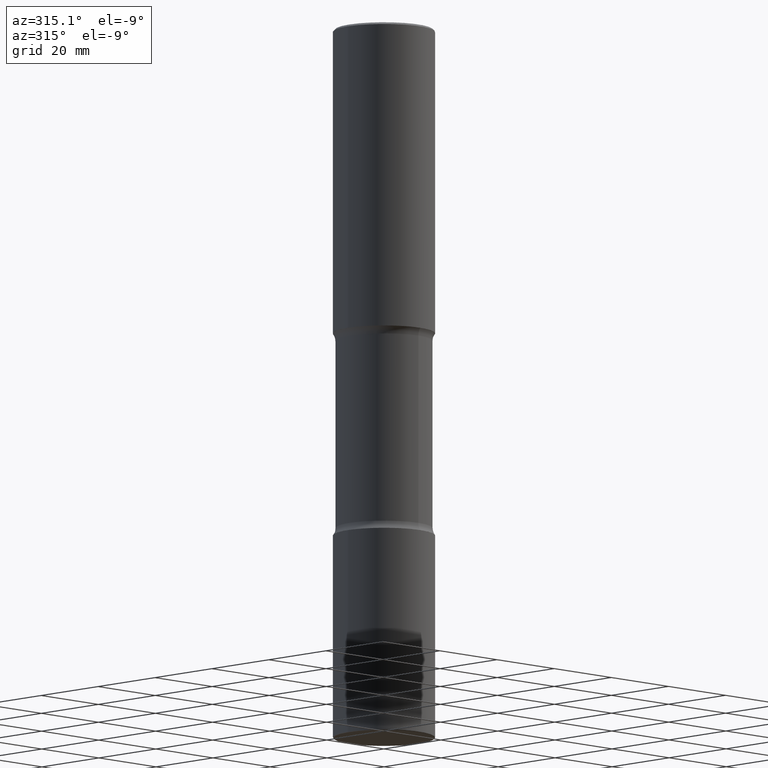
[diagram: clean part render]
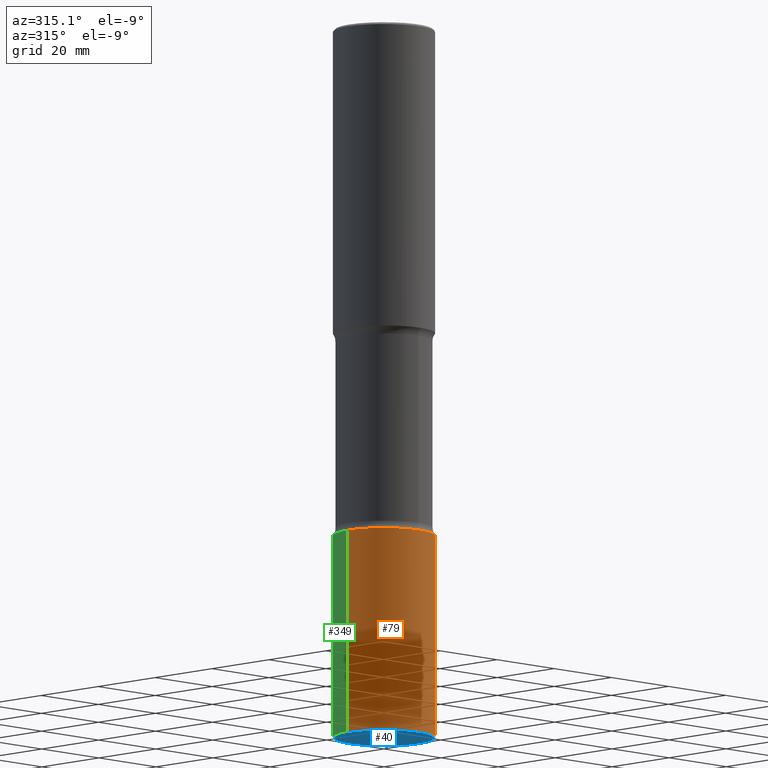
[diagram: same view with three faces highlighted in distinct colors, each labeled with its STEP entity id]
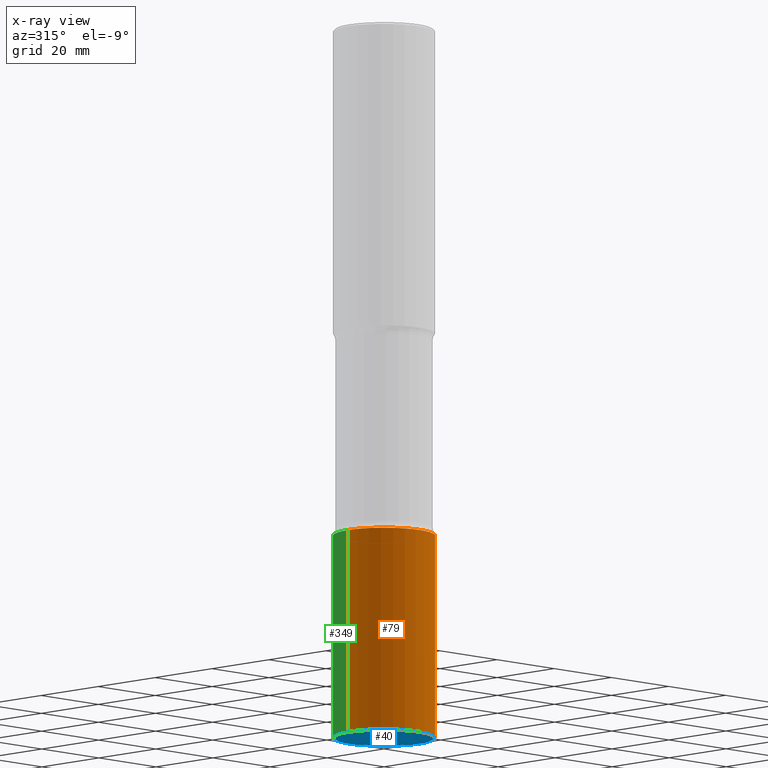
[diagram: x-ray of the same camera — body ghosted, the three highlighted faces saturated]
A machine part, auxiliary view with three faces highlighted in distinct colors.
The next image is the same camera in x-ray (body ghosted, the three faces saturated) — at least one of them is partly hidden behind the body in this view.
Their STEP definitions:

[orange] entity #79 — the highlighted cylindrical surface (partial cylindrical patch) has radius 12.7 mm, axis along (-0, 0, 1).
#10 = EDGE_CURVE ( 'NONE', #410, #215, #295, .T. ) ;
#24 = DIRECTION ( 'NONE',  ( -2.445468806185136597E-29, 3.491481338843145583E-15, 1.000000000000000000 ) ) ;
#26 = CARTESIAN_POINT ( 'NONE',  ( -0.5000000000000006661, -2.085274087971308453E-14, -6.989999999999999325 ) ) ;
#78 = ORIENTED_EDGE ( 'NONE', *, *, #237, .T. ) ;
#79 = ADVANCED_FACE ( 'NONE', ( #156 ), #203, .T. ) ;
#84 = AXIS2_PLACEMENT_3D ( 'NONE', #206, #559, #216 ) ;
#137 = VECTOR ( 'NONE', #344, 39.37007874015748143 ) ;
#151 = EDGE_CURVE ( 'NONE', #311, #215, #498, .T. ) ;
#156 = FACE_OUTER_BOUND ( 'NONE', #369, .T. ) ;
#179 = DIRECTION ( 'NONE',  ( 1.000000000000000000, -6.982962677686263555E-15, 0.000000000000000000 ) ) ;
#199 = AXIS2_PLACEMENT_3D ( 'NONE', #467, #24, #275 ) ;
#203 = CYLINDRICAL_SURFACE ( 'NONE', #199, 0.5000000000000002220 ) ;
#206 = CARTESIAN_POINT ( 'NONE',  ( 1.709382695523410463E-28, -2.440545455851358546E-14, -6.989999999999999325 ) ) ;
#215 = VERTEX_POINT ( 'NONE', #556 ) ;
#216 = DIRECTION ( 'NONE',  ( 1.000000000000000000, -6.982962677686265922E-15, 0.000000000000000000 ) ) ;
#224 = DIRECTION ( 'NONE',  ( -2.445468806185136597E-29, 3.491481338843145583E-15, 1.000000000000000000 ) ) ;
#235 = EDGE_CURVE ( 'NONE', #485, #410, #304, .T. ) ;
#237 = EDGE_CURVE ( 'NONE', #485, #311, #363, .T. ) ;
#273 = CARTESIAN_POINT ( 'NONE',  ( -0.5000000000000002220, -1.737871694756415201E-14, -4.999999999999999112 ) ) ;
#275 = DIRECTION ( 'NONE',  ( 1.000000000000000000, -6.982962677686267499E-15, 4.876176775795936353E-29 ) ) ;
#295 = CIRCLE ( 'NONE', #548, 0.5000000000000002220 ) ;
#304 = LINE ( 'NONE', #442, #137 ) ;
#305 = ORIENTED_EDGE ( 'NONE', *, *, #235, .F. ) ;
#311 = VERTEX_POINT ( 'NONE', #435 ) ;
#342 = DIRECTION ( 'NONE',  ( -2.445468806185136877E-29, 3.491481338843145188E-15, 1.000000000000000000 ) ) ;
#344 = DIRECTION ( 'NONE',  ( -2.445468806185136877E-29, 3.491481338843145188E-15, 1.000000000000000000 ) ) ;
#363 = CIRCLE ( 'NONE', #84, 0.5000000000000003331 ) ;
#369 = EDGE_LOOP ( 'NONE', ( #305, #78, #405, #382 ) ) ;
#382 = ORIENTED_EDGE ( 'NONE', *, *, #10, .F. ) ;
#405 = ORIENTED_EDGE ( 'NONE', *, *, #151, .T. ) ;
#410 = VERTEX_POINT ( 'NONE', #273 ) ;
#429 = VECTOR ( 'NONE', #342, 39.37007874015748143 ) ;
#435 = CARTESIAN_POINT ( 'NONE',  ( 0.5000000000000006661, -2.789693589735672512E-14, -6.989999999999999325 ) ) ;
#442 = CARTESIAN_POINT ( 'NONE',  ( -0.5000000000000002220, 3.552713678800502507E-15, -2.459467545127454292E-29 ) ) ;
#453 = CARTESIAN_POINT ( 'NONE',  ( 1.222734403092568074E-28, -1.745740669421572673E-14, -4.999999999999999112 ) ) ;
#459 = CARTESIAN_POINT ( 'NONE',  ( 0.5000000000000002220, -3.491481338843135327E-15, 2.438088387897969298E-29 ) ) ;
#467 = CARTESIAN_POINT ( 'NONE',  ( 0.000000000000000000, 0.000000000000000000, 0.000000000000000000 ) ) ;
#485 = VERTEX_POINT ( 'NONE', #26 ) ;
#498 = LINE ( 'NONE', #459, #429 ) ;
#548 = AXIS2_PLACEMENT_3D ( 'NONE', #453, #224, #179 ) ;
#556 = CARTESIAN_POINT ( 'NONE',  ( 0.5000000000000002220, -2.094888803305886009E-14, -4.999999999999999112 ) ) ;
#559 = DIRECTION ( 'NONE',  ( -2.445468806185136597E-29, 3.491481338843145583E-15, 1.000000000000000000 ) ) ;

[blue] entity #40 — the highlighted planar face has unit normal (0, -0, -1).
#9 = CIRCLE ( 'NONE', #511, 0.4900000000000002132 ) ;
#11 = CARTESIAN_POINT ( 'NONE',  ( 0.4900000000000002132, -2.786202108396829505E-14, -7.000000000000000888 ) ) ;
#27 = DIRECTION ( 'NONE',  ( -2.445468806185136597E-29, 3.491481338843145583E-15, 1.000000000000000000 ) ) ;
#40 = ADVANCED_FACE ( 'NONE', ( #506 ), #197, .T. ) ;
#73 = DIRECTION ( 'NONE',  ( 1.000000000000000000, -6.982962677686270655E-15, 0.000000000000000000 ) ) ;
#86 = EDGE_LOOP ( 'NONE', ( #92, #449 ) ) ;
#92 = ORIENTED_EDGE ( 'NONE', *, *, #102, .F. ) ;
#102 = EDGE_CURVE ( 'NONE', #560, #537, #263, .T. ) ;
#172 = AXIS2_PLACEMENT_3D ( 'NONE', #190, #27, #329 ) ;
#190 = CARTESIAN_POINT ( 'NONE',  ( 1.711828164329595618E-28, -2.444036937190202184E-14, -7.000000000000000888 ) ) ;
#197 = PLANE ( 'NONE',  #232 ) ;
#232 = AXIS2_PLACEMENT_3D ( 'NONE', #245, #468, #426 ) ;
#245 = CARTESIAN_POINT ( 'NONE',  ( -4.683309877697932698E-29, -5.566148929949358886E-14, -7.000000000000000000 ) ) ;
#263 = CIRCLE ( 'NONE', #172, 0.4900000000000002132 ) ;
#291 = CARTESIAN_POINT ( 'NONE',  ( 1.711828164329595618E-28, -2.444036937190202184E-14, -7.000000000000000888 ) ) ;
#329 = DIRECTION ( 'NONE',  ( 1.000000000000000000, -6.982962677686270655E-15, 0.000000000000000000 ) ) ;
#389 = DIRECTION ( 'NONE',  ( -2.445468806185136597E-29, 3.491481338843145583E-15, 1.000000000000000000 ) ) ;
#426 = DIRECTION ( 'NONE',  ( -1.000000000000000000, 6.982962677686265922E-15, -4.876176775795935793E-29 ) ) ;
#432 = CARTESIAN_POINT ( 'NONE',  ( -0.4900000000000002132, -2.090572542319530224E-14, -7.000000000000000888 ) ) ;
#449 = ORIENTED_EDGE ( 'NONE', *, *, #524, .F. ) ;
#468 = DIRECTION ( 'NONE',  ( 2.438088387897960049E-29, -3.491481338843145188E-15, -1.000000000000000000 ) ) ;
#506 = FACE_OUTER_BOUND ( 'NONE', #86, .T. ) ;
#511 = AXIS2_PLACEMENT_3D ( 'NONE', #291, #389, #73 ) ;
#524 = EDGE_CURVE ( 'NONE', #537, #560, #9, .T. ) ;
#537 = VERTEX_POINT ( 'NONE', #432 ) ;
#560 = VERTEX_POINT ( 'NONE', #11 ) ;

[green] entity #349 — the highlighted cylindrical surface (partial cylindrical patch) has radius 12.7 mm, axis along (-0, 0, 1).
#16 = ORIENTED_EDGE ( 'NONE', *, *, #409, .F. ) ;
#26 = CARTESIAN_POINT ( 'NONE',  ( -0.5000000000000006661, -2.085274087971308453E-14, -6.989999999999999325 ) ) ;
#49 = FACE_OUTER_BOUND ( 'NONE', #433, .T. ) ;
#87 = ORIENTED_EDGE ( 'NONE', *, *, #170, .T. ) ;
#93 = DIRECTION ( 'NONE',  ( -2.445468806185136597E-29, 3.491481338843145583E-15, 1.000000000000000000 ) ) ;
#137 = VECTOR ( 'NONE', #344, 39.37007874015748143 ) ;
#151 = EDGE_CURVE ( 'NONE', #311, #215, #498, .T. ) ;
#164 = ORIENTED_EDGE ( 'NONE', *, *, #151, .F. ) ;
#170 = EDGE_CURVE ( 'NONE', #311, #485, #488, .T. ) ;
#184 = CARTESIAN_POINT ( 'NONE',  ( 1.709382695523410463E-28, -2.440545455851358546E-14, -6.989999999999999325 ) ) ;
#215 = VERTEX_POINT ( 'NONE', #556 ) ;
#222 = CARTESIAN_POINT ( 'NONE',  ( 0.000000000000000000, 0.000000000000000000, 0.000000000000000000 ) ) ;
#235 = EDGE_CURVE ( 'NONE', #485, #410, #304, .T. ) ;
#273 = CARTESIAN_POINT ( 'NONE',  ( -0.5000000000000002220, -1.737871694756415201E-14, -4.999999999999999112 ) ) ;
#274 = DIRECTION ( 'NONE',  ( -2.445468806185136597E-29, 3.491481338843145583E-15, 1.000000000000000000 ) ) ;
#279 = DIRECTION ( 'NONE',  ( 1.000000000000000000, -6.982962677686263555E-15, 0.000000000000000000 ) ) ;
#281 = DIRECTION ( 'NONE',  ( -2.445468806185136597E-29, 3.491481338843145583E-15, 1.000000000000000000 ) ) ;
#304 = LINE ( 'NONE', #442, #137 ) ;
#309 = CIRCLE ( 'NONE', #346, 0.5000000000000002220 ) ;
#311 = VERTEX_POINT ( 'NONE', #435 ) ;
#342 = DIRECTION ( 'NONE',  ( -2.445468806185136877E-29, 3.491481338843145188E-15, 1.000000000000000000 ) ) ;
#344 = DIRECTION ( 'NONE',  ( -2.445468806185136877E-29, 3.491481338843145188E-15, 1.000000000000000000 ) ) ;
#346 = AXIS2_PLACEMENT_3D ( 'NONE', #377, #274, #279 ) ;
#349 = ADVANCED_FACE ( 'NONE', ( #49 ), #404, .T. ) ;
#377 = CARTESIAN_POINT ( 'NONE',  ( 1.222734403092568074E-28, -1.745740669421572673E-14, -4.999999999999999112 ) ) ;
#404 = CYLINDRICAL_SURFACE ( 'NONE', #520, 0.5000000000000002220 ) ;
#409 = EDGE_CURVE ( 'NONE', #215, #410, #309, .T. ) ;
#410 = VERTEX_POINT ( 'NONE', #273 ) ;
#419 = AXIS2_PLACEMENT_3D ( 'NONE', #184, #281, #508 ) ;
#429 = VECTOR ( 'NONE', #342, 39.37007874015748143 ) ;
#433 = EDGE_LOOP ( 'NONE', ( #87, #472, #16, #164 ) ) ;
#435 = CARTESIAN_POINT ( 'NONE',  ( 0.5000000000000006661, -2.789693589735672512E-14, -6.989999999999999325 ) ) ;
#442 = CARTESIAN_POINT ( 'NONE',  ( -0.5000000000000002220, 3.552713678800502507E-15, -2.459467545127454292E-29 ) ) ;
#459 = CARTESIAN_POINT ( 'NONE',  ( 0.5000000000000002220, -3.491481338843135327E-15, 2.438088387897969298E-29 ) ) ;
#472 = ORIENTED_EDGE ( 'NONE', *, *, #235, .T. ) ;
#485 = VERTEX_POINT ( 'NONE', #26 ) ;
#488 = CIRCLE ( 'NONE', #419, 0.5000000000000003331 ) ;
#498 = LINE ( 'NONE', #459, #429 ) ;
#508 = DIRECTION ( 'NONE',  ( 1.000000000000000000, -6.982962677686265922E-15, 0.000000000000000000 ) ) ;
#520 = AXIS2_PLACEMENT_3D ( 'NONE', #222, #93, #531 ) ;
#531 = DIRECTION ( 'NONE',  ( 1.000000000000000000, -6.982962677686267499E-15, 4.876176775795936353E-29 ) ) ;
#556 = CARTESIAN_POINT ( 'NONE',  ( 0.5000000000000002220, -2.094888803305886009E-14, -4.999999999999999112 ) ) ;